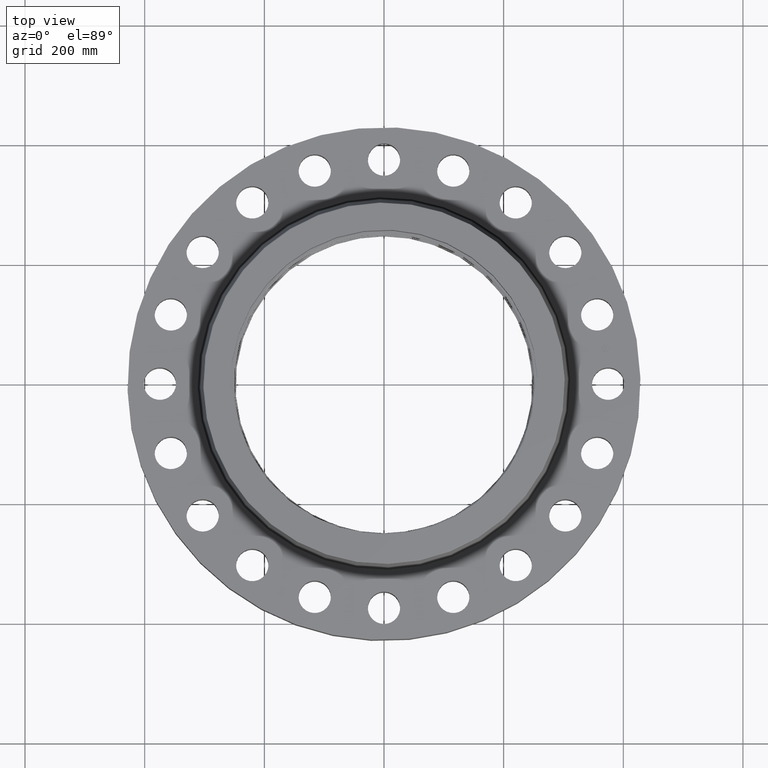
[diagram: clean part render]
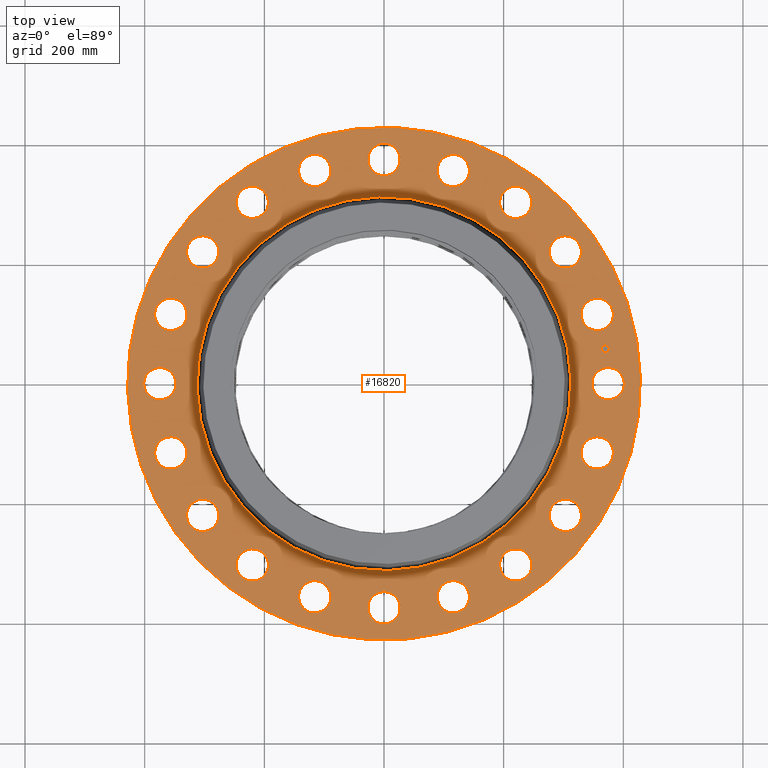
[diagram: same view with one face highlighted and labeled with its STEP entity id]
A machine part, top view. The second image highlights one B-rep face of the part: STEP entity #16820.
In plain terms, the highlighted planar face has unit normal (0, 0, -1).
Its self-contained STEP definition (entity closure, byte-faithful):
#416=AXIS2_PLACEMENT_3D('Circle Axis2P3D',#414,#415,$) ;
#433=AXIS2_PLACEMENT_3D('Circle Axis2P3D',#431,#432,$) ;
#466=AXIS2_PLACEMENT_3D('Circle Axis2P3D',#464,#465,$) ;
#490=AXIS2_PLACEMENT_3D('Circle Axis2P3D',#488,#489,$) ;
#507=AXIS2_PLACEMENT_3D('Circle Axis2P3D',#505,#506,$) ;
#542=AXIS2_PLACEMENT_3D('Circle Axis2P3D',#540,#541,$) ;
#1067=AXIS2_PLACEMENT_3D('Circle Axis2P3D',#1065,#1066,$) ;
#1079=AXIS2_PLACEMENT_3D('Circle Axis2P3D',#1077,#1078,$) ;
#1110=AXIS2_PLACEMENT_3D('Circle Axis2P3D',#1108,#1109,$) ;
#1122=AXIS2_PLACEMENT_3D('Circle Axis2P3D',#1120,#1121,$) ;
#1153=AXIS2_PLACEMENT_3D('Circle Axis2P3D',#1151,#1152,$) ;
#1165=AXIS2_PLACEMENT_3D('Circle Axis2P3D',#1163,#1164,$) ;
#1196=AXIS2_PLACEMENT_3D('Circle Axis2P3D',#1194,#1195,$) ;
#1208=AXIS2_PLACEMENT_3D('Circle Axis2P3D',#1206,#1207,$) ;
#1239=AXIS2_PLACEMENT_3D('Circle Axis2P3D',#1237,#1238,$) ;
#1251=AXIS2_PLACEMENT_3D('Circle Axis2P3D',#1249,#1250,$) ;
#1282=AXIS2_PLACEMENT_3D('Circle Axis2P3D',#1280,#1281,$) ;
#1294=AXIS2_PLACEMENT_3D('Circle Axis2P3D',#1292,#1293,$) ;
#1325=AXIS2_PLACEMENT_3D('Circle Axis2P3D',#1323,#1324,$) ;
#1337=AXIS2_PLACEMENT_3D('Circle Axis2P3D',#1335,#1336,$) ;
#1368=AXIS2_PLACEMENT_3D('Circle Axis2P3D',#1366,#1367,$) ;
#1380=AXIS2_PLACEMENT_3D('Circle Axis2P3D',#1378,#1379,$) ;
#1411=AXIS2_PLACEMENT_3D('Circle Axis2P3D',#1409,#1410,$) ;
#1423=AXIS2_PLACEMENT_3D('Circle Axis2P3D',#1421,#1422,$) ;
#1454=AXIS2_PLACEMENT_3D('Circle Axis2P3D',#1452,#1453,$) ;
#1466=AXIS2_PLACEMENT_3D('Circle Axis2P3D',#1464,#1465,$) ;
#1497=AXIS2_PLACEMENT_3D('Circle Axis2P3D',#1495,#1496,$) ;
#1509=AXIS2_PLACEMENT_3D('Circle Axis2P3D',#1507,#1508,$) ;
#1540=AXIS2_PLACEMENT_3D('Circle Axis2P3D',#1538,#1539,$) ;
#1552=AXIS2_PLACEMENT_3D('Circle Axis2P3D',#1550,#1551,$) ;
#1583=AXIS2_PLACEMENT_3D('Circle Axis2P3D',#1581,#1582,$) ;
#1595=AXIS2_PLACEMENT_3D('Circle Axis2P3D',#1593,#1594,$) ;
#1626=AXIS2_PLACEMENT_3D('Circle Axis2P3D',#1624,#1625,$) ;
#1638=AXIS2_PLACEMENT_3D('Circle Axis2P3D',#1636,#1637,$) ;
#1669=AXIS2_PLACEMENT_3D('Circle Axis2P3D',#1667,#1668,$) ;
#1681=AXIS2_PLACEMENT_3D('Circle Axis2P3D',#1679,#1680,$) ;
#1712=AXIS2_PLACEMENT_3D('Circle Axis2P3D',#1710,#1711,$) ;
#1724=AXIS2_PLACEMENT_3D('Circle Axis2P3D',#1722,#1723,$) ;
#1755=AXIS2_PLACEMENT_3D('Circle Axis2P3D',#1753,#1754,$) ;
#1767=AXIS2_PLACEMENT_3D('Circle Axis2P3D',#1765,#1766,$) ;
#1798=AXIS2_PLACEMENT_3D('Circle Axis2P3D',#1796,#1797,$) ;
#1810=AXIS2_PLACEMENT_3D('Circle Axis2P3D',#1808,#1809,$) ;
#1841=AXIS2_PLACEMENT_3D('Circle Axis2P3D',#1839,#1840,$) ;
#1853=AXIS2_PLACEMENT_3D('Circle Axis2P3D',#1851,#1852,$) ;
#16712=AXIS2_PLACEMENT_3D('Plane Axis2P3D',#16709,#16710,#16711) ;
#16804=AXIS2_PLACEMENT_3D('Circle Axis2P3D',#16802,#16803,$) ;
#16813=AXIS2_PLACEMENT_3D('Circle Axis2P3D',#16811,#16812,$) ;
#397=CARTESIAN_POINT('Vertex',(13.8153745716,0.510588198616,4.25000000002)) ;
#411=CARTESIAN_POINT('Vertex',(15.6846254285,-0.510588198616,4.25000000002)) ;
#414=CARTESIAN_POINT('Axis2P3D Location',(14.7500000001,0.,4.25000000002)) ;
#431=CARTESIAN_POINT('Axis2P3D Location',(14.7500000001,0.,4.25000000002)) ;
#461=CARTESIAN_POINT('Vertex',(-8.09030596398,-14.809205732,4.25000000002)) ;
#464=CARTESIAN_POINT('Axis2P3D Location',(0.,0.,4.25000000002)) ;
#468=CARTESIAN_POINT('Vertex',(8.09030596398,14.809205732,4.25000000002)) ;
#488=CARTESIAN_POINT('Axis2P3D Location',(0.,0.,4.25000000002)) ;
#505=CARTESIAN_POINT('Axis2P3D Location',(0.,0.,4.25000000002)) ;
#509=CARTESIAN_POINT('Vertex',(5.89709999548,10.7945691354,4.25000000002)) ;
#511=CARTESIAN_POINT('Vertex',(-5.89709999548,-10.7945691354,4.25000000002)) ;
#540=CARTESIAN_POINT('Axis2P3D Location',(0.,0.,4.25000000002)) ;
#1055=CARTESIAN_POINT('Vertex',(-13.2969824419,3.78358729286,4.25000000002)) ;
#1062=CARTESIAN_POINT('Vertex',(-14.7591847889,5.33241404124,4.25000000002)) ;
#1065=CARTESIAN_POINT('Axis2P3D Location',(-14.0280836154,4.55800066705,4.25000000002)) ;
#1077=CARTESIAN_POINT('Axis2P3D Location',(-14.0280836154,4.55800066705,4.25000000002)) ;
#1098=CARTESIAN_POINT('Vertex',(11.4769890253,-7.7073988983,4.25000000002)) ;
#1105=CARTESIAN_POINT('Vertex',(12.3890123089,-9.6322660444,4.25000000002)) ;
#1108=CARTESIAN_POINT('Axis2P3D Location',(11.9330006671,-8.66983247135,4.25000000002)) ;
#1120=CARTESIAN_POINT('Axis2P3D Location',(11.9330006671,-8.66983247135,4.25000000002)) ;
#1141=CARTESIAN_POINT('Vertex',(-11.4769890253,7.7073988983,4.25000000002)) ;
#1148=CARTESIAN_POINT('Vertex',(-12.3890123089,9.6322660444,4.25000000002)) ;
#1151=CARTESIAN_POINT('Axis2P3D Location',(-11.9330006671,8.66983247135,4.25000000002)) ;
#1163=CARTESIAN_POINT('Axis2P3D Location',(-11.9330006671,8.66983247135,4.25000000002)) ;
#1184=CARTESIAN_POINT('Vertex',(8.53354795791,-10.876756599,4.25000000002)) ;
#1191=CARTESIAN_POINT('Vertex',(8.80611698478,-12.9892447352,4.25000000002)) ;
#1194=CARTESIAN_POINT('Axis2P3D Location',(8.66983247135,-11.9330006671,4.25000000002)) ;
#1206=CARTESIAN_POINT('Axis2P3D Location',(8.66983247135,-11.9330006671,4.25000000002)) ;
#1227=CARTESIAN_POINT('Vertex',(-8.53354795791,10.876756599,4.25000000002)) ;
#1234=CARTESIAN_POINT('Vertex',(-8.80611698478,12.9892447352,4.25000000002)) ;
#1237=CARTESIAN_POINT('Axis2P3D Location',(-8.66983247135,11.9330006671,4.25000000002)) ;
#1249=CARTESIAN_POINT('Axis2P3D Location',(-8.66983247135,11.9330006671,4.25000000002)) ;
#1270=CARTESIAN_POINT('Vertex',(4.75478375973,-12.9814215809,4.25000000002)) ;
#1277=CARTESIAN_POINT('Vertex',(4.36121757437,-15.0747456499,4.25000000002)) ;
#1280=CARTESIAN_POINT('Axis2P3D Location',(4.55800066705,-14.0280836154,4.25000000002)) ;
#1292=CARTESIAN_POINT('Axis2P3D Location',(4.55800066705,-14.0280836154,4.25000000002)) ;
#1313=CARTESIAN_POINT('Vertex',(-4.75478375973,12.9814215809,4.25000000002)) ;
#1320=CARTESIAN_POINT('Vertex',(-4.36121757437,15.0747456499,4.25000000002)) ;
#1323=CARTESIAN_POINT('Axis2P3D Location',(-4.55800066705,14.0280836154,4.25000000002)) ;
#1335=CARTESIAN_POINT('Axis2P3D Location',(-4.55800066705,14.0280836154,4.25000000002)) ;
#1356=CARTESIAN_POINT('Vertex',(0.510588198616,-13.8153745716,4.25000000002)) ;
#1363=CARTESIAN_POINT('Vertex',(-0.510588198616,-15.6846254285,4.25000000002)) ;
#1366=CARTESIAN_POINT('Axis2P3D Location',(4.17833493703E-015,-14.7500000001,4.25000000002)) ;
#1378=CARTESIAN_POINT('Axis2P3D Location',(4.17833493703E-015,-14.7500000001,4.25000000002)) ;
#1399=CARTESIAN_POINT('Vertex',(-0.510588198616,13.8153745716,4.25000000002)) ;
#1406=CARTESIAN_POINT('Vertex',(0.510588198616,15.6846254285,4.25000000002)) ;
#1409=CARTESIAN_POINT('Axis2P3D Location',(-1.58101627338E-014,14.7500000001,4.25000000002)) ;
#1421=CARTESIAN_POINT('Axis2P3D Location',(-1.58101627338E-014,14.7500000001,4.25000000002)) ;
#1442=CARTESIAN_POINT('Vertex',(-3.78358729286,-13.2969824419,4.25000000002)) ;
#1449=CARTESIAN_POINT('Vertex',(-5.33241404124,-14.7591847889,4.25000000002)) ;
#1452=CARTESIAN_POINT('Axis2P3D Location',(-4.55800066705,-14.0280836154,4.25000000002)) ;
#1464=CARTESIAN_POINT('Axis2P3D Location',(-4.55800066705,-14.0280836154,4.25000000002)) ;
#1485=CARTESIAN_POINT('Vertex',(3.78358729286,13.2969824419,4.25000000002)) ;
#1492=CARTESIAN_POINT('Vertex',(5.33241404124,14.7591847889,4.25000000002)) ;
#1495=CARTESIAN_POINT('Axis2P3D Location',(4.55800066705,14.0280836154,4.25000000002)) ;
#1507=CARTESIAN_POINT('Axis2P3D Location',(4.55800066705,14.0280836154,4.25000000002)) ;
#1528=CARTESIAN_POINT('Vertex',(-7.7073988983,-11.4769890253,4.25000000002)) ;
#1535=CARTESIAN_POINT('Vertex',(-9.6322660444,-12.3890123089,4.25000000002)) ;
#1538=CARTESIAN_POINT('Axis2P3D Location',(-8.66983247135,-11.9330006671,4.25000000002)) ;
#1550=CARTESIAN_POINT('Axis2P3D Location',(-8.66983247135,-11.9330006671,4.25000000002)) ;
#1571=CARTESIAN_POINT('Vertex',(7.7073988983,11.4769890253,4.25000000002)) ;
#1578=CARTESIAN_POINT('Vertex',(9.6322660444,12.3890123089,4.25000000002)) ;
#1581=CARTESIAN_POINT('Axis2P3D Location',(8.66983247135,11.9330006671,4.25000000002)) ;
#1593=CARTESIAN_POINT('Axis2P3D Location',(8.66983247135,11.9330006671,4.25000000002)) ;
#1614=CARTESIAN_POINT('Vertex',(-10.876756599,-8.53354795791,4.25000000002)) ;
#1621=CARTESIAN_POINT('Vertex',(-12.9892447352,-8.80611698478,4.25000000002)) ;
#1624=CARTESIAN_POINT('Axis2P3D Location',(-11.9330006671,-8.66983247135,4.25000000002)) ;
#1636=CARTESIAN_POINT('Axis2P3D Location',(-11.9330006671,-8.66983247135,4.25000000002)) ;
#1657=CARTESIAN_POINT('Vertex',(10.876756599,8.53354795791,4.25000000002)) ;
#1664=CARTESIAN_POINT('Vertex',(12.9892447352,8.80611698478,4.25000000002)) ;
#1667=CARTESIAN_POINT('Axis2P3D Location',(11.9330006671,8.66983247135,4.25000000002)) ;
#1679=CARTESIAN_POINT('Axis2P3D Location',(11.9330006671,8.66983247135,4.25000000002)) ;
#1700=CARTESIAN_POINT('Vertex',(-12.9814215809,-4.75478375973,4.25000000002)) ;
#1707=CARTESIAN_POINT('Vertex',(-15.0747456499,-4.36121757437,4.25000000002)) ;
#1710=CARTESIAN_POINT('Axis2P3D Location',(-14.0280836154,-4.55800066705,4.25000000002)) ;
#1722=CARTESIAN_POINT('Axis2P3D Location',(-14.0280836154,-4.55800066705,4.25000000002)) ;
#1743=CARTESIAN_POINT('Vertex',(12.9814215809,4.75478375973,4.25000000002)) ;
#1750=CARTESIAN_POINT('Vertex',(15.0747456499,4.36121757437,4.25000000002)) ;
#1753=CARTESIAN_POINT('Axis2P3D Location',(14.0280836154,4.55800066705,4.25000000002)) ;
#1765=CARTESIAN_POINT('Axis2P3D Location',(14.0280836154,4.55800066705,4.25000000002)) ;
#1786=CARTESIAN_POINT('Vertex',(-13.8153745716,-0.510588198616,4.25000000002)) ;
#1793=CARTESIAN_POINT('Vertex',(-15.6846254285,0.510588198616,4.25000000002)) ;
#1796=CARTESIAN_POINT('Axis2P3D Location',(-14.7500000001,-8.35666987406E-015,4.25000000002)) ;
#1808=CARTESIAN_POINT('Axis2P3D Location',(-14.7500000001,-8.35666987406E-015,4.25000000002)) ;
#1829=CARTESIAN_POINT('Vertex',(13.2969824419,-3.78358729286,4.25000000002)) ;
#1836=CARTESIAN_POINT('Vertex',(14.7591847889,-5.33241404124,4.25000000002)) ;
#1839=CARTESIAN_POINT('Axis2P3D Location',(14.0280836154,-4.55800066705,4.25000000002)) ;
#1851=CARTESIAN_POINT('Axis2P3D Location',(14.0280836154,-4.55800066705,4.25000000002)) ;
#16709=CARTESIAN_POINT('Axis2P3D Location',(0.,16.8750000001,4.25000000002)) ;
#16802=CARTESIAN_POINT('Axis2P3D Location',(14.5684030238,2.30740835935,4.25000000002)) ;
#16806=CARTESIAN_POINT('Vertex',(14.5296854937,2.55186122365,4.25000000002)) ;
#16808=CARTESIAN_POINT('Vertex',(14.6071205539,2.06295549505,4.25000000002)) ;
#16811=CARTESIAN_POINT('Axis2P3D Location',(14.5684030238,2.30740835935,4.25000000002)) ;
#415=DIRECTION('Axis2P3D Direction',(0.,-0.,-0.0393700787402)) ;
#432=DIRECTION('Axis2P3D Direction',(0.,-0.,-0.0393700787402)) ;
#465=DIRECTION('Axis2P3D Direction',(0.,0.,-0.0393700787402)) ;
#489=DIRECTION('Axis2P3D Direction',(0.,0.,-0.0393700787402)) ;
#506=DIRECTION('Axis2P3D Direction',(0.,0.,-0.0393700787402)) ;
#541=DIRECTION('Axis2P3D Direction',(0.,0.,-0.0393700787402)) ;
#1066=DIRECTION('Axis2P3D Direction',(0.,0.,-0.0393700787402)) ;
#1078=DIRECTION('Axis2P3D Direction',(0.,0.,-0.0393700787402)) ;
#1109=DIRECTION('Axis2P3D Direction',(0.,-0.,-0.0393700787402)) ;
#1121=DIRECTION('Axis2P3D Direction',(0.,-0.,-0.0393700787402)) ;
#1152=DIRECTION('Axis2P3D Direction',(0.,0.,-0.0393700787402)) ;
#1164=DIRECTION('Axis2P3D Direction',(0.,0.,-0.0393700787402)) ;
#1195=DIRECTION('Axis2P3D Direction',(0.,-0.,-0.0393700787402)) ;
#1207=DIRECTION('Axis2P3D Direction',(0.,-0.,-0.0393700787402)) ;
#1238=DIRECTION('Axis2P3D Direction',(0.,0.,-0.0393700787402)) ;
#1250=DIRECTION('Axis2P3D Direction',(0.,0.,-0.0393700787402)) ;
#1281=DIRECTION('Axis2P3D Direction',(0.,-0.,-0.0393700787402)) ;
#1293=DIRECTION('Axis2P3D Direction',(0.,-0.,-0.0393700787402)) ;
#1324=DIRECTION('Axis2P3D Direction',(0.,0.,-0.0393700787402)) ;
#1336=DIRECTION('Axis2P3D Direction',(0.,0.,-0.0393700787402)) ;
#1367=DIRECTION('Axis2P3D Direction',(0.,-0.,-0.0393700787402)) ;
#1379=DIRECTION('Axis2P3D Direction',(0.,-0.,-0.0393700787402)) ;
#1410=DIRECTION('Axis2P3D Direction',(0.,0.,-0.0393700787402)) ;
#1422=DIRECTION('Axis2P3D Direction',(0.,0.,-0.0393700787402)) ;
#1453=DIRECTION('Axis2P3D Direction',(-0.,0.,-0.0393700787402)) ;
#1465=DIRECTION('Axis2P3D Direction',(-0.,0.,-0.0393700787402)) ;
#1496=DIRECTION('Axis2P3D Direction',(0.,0.,-0.0393700787402)) ;
#1508=DIRECTION('Axis2P3D Direction',(0.,0.,-0.0393700787402)) ;
#1539=DIRECTION('Axis2P3D Direction',(-0.,0.,-0.0393700787402)) ;
#1551=DIRECTION('Axis2P3D Direction',(-0.,0.,-0.0393700787402)) ;
#1582=DIRECTION('Axis2P3D Direction',(0.,0.,-0.0393700787402)) ;
#1594=DIRECTION('Axis2P3D Direction',(0.,0.,-0.0393700787402)) ;
#1625=DIRECTION('Axis2P3D Direction',(-0.,0.,-0.0393700787402)) ;
#1637=DIRECTION('Axis2P3D Direction',(-0.,0.,-0.0393700787402)) ;
#1668=DIRECTION('Axis2P3D Direction',(0.,0.,-0.0393700787402)) ;
#1680=DIRECTION('Axis2P3D Direction',(0.,0.,-0.0393700787402)) ;
#1711=DIRECTION('Axis2P3D Direction',(-0.,0.,-0.0393700787402)) ;
#1723=DIRECTION('Axis2P3D Direction',(-0.,0.,-0.0393700787402)) ;
#1754=DIRECTION('Axis2P3D Direction',(0.,0.,-0.0393700787402)) ;
#1766=DIRECTION('Axis2P3D Direction',(0.,0.,-0.0393700787402)) ;
#1797=DIRECTION('Axis2P3D Direction',(-0.,0.,-0.0393700787402)) ;
#1809=DIRECTION('Axis2P3D Direction',(-0.,0.,-0.0393700787402)) ;
#1840=DIRECTION('Axis2P3D Direction',(0.,-0.,-0.0393700787402)) ;
#1852=DIRECTION('Axis2P3D Direction',(0.,-0.,-0.0393700787402)) ;
#16710=DIRECTION('Axis2P3D Direction',(0.,0.,-0.0393700787402)) ;
#16711=DIRECTION('Axis2P3D XDirection',(0.0393700787402,0.,0.)) ;
#16803=DIRECTION('Axis2P3D Direction',(0.,0.,-0.0393700787402)) ;
#16812=DIRECTION('Axis2P3D Direction',(0.,0.,-0.0393700787402)) ;
#16715=ORIENTED_EDGE('',*,*,#492,.F.) ;
#16716=ORIENTED_EDGE('',*,*,#470,.F.) ;
#16719=ORIENTED_EDGE('',*,*,#418,.T.) ;
#16720=ORIENTED_EDGE('',*,*,#435,.T.) ;
#16723=ORIENTED_EDGE('',*,*,#544,.T.) ;
#16724=ORIENTED_EDGE('',*,*,#513,.T.) ;
#16727=ORIENTED_EDGE('',*,*,#1855,.T.) ;
#16728=ORIENTED_EDGE('',*,*,#1843,.T.) ;
#16731=ORIENTED_EDGE('',*,*,#1124,.T.) ;
#16732=ORIENTED_EDGE('',*,*,#1112,.T.) ;
#16735=ORIENTED_EDGE('',*,*,#1210,.T.) ;
#16736=ORIENTED_EDGE('',*,*,#1198,.T.) ;
#16739=ORIENTED_EDGE('',*,*,#1296,.T.) ;
#16740=ORIENTED_EDGE('',*,*,#1284,.T.) ;
#16743=ORIENTED_EDGE('',*,*,#1382,.T.) ;
#16744=ORIENTED_EDGE('',*,*,#1370,.T.) ;
#16747=ORIENTED_EDGE('',*,*,#1468,.T.) ;
#16748=ORIENTED_EDGE('',*,*,#1456,.T.) ;
#16751=ORIENTED_EDGE('',*,*,#1554,.T.) ;
#16752=ORIENTED_EDGE('',*,*,#1542,.T.) ;
#16755=ORIENTED_EDGE('',*,*,#1640,.T.) ;
#16756=ORIENTED_EDGE('',*,*,#1628,.T.) ;
#16759=ORIENTED_EDGE('',*,*,#1726,.T.) ;
#16760=ORIENTED_EDGE('',*,*,#1714,.T.) ;
#16763=ORIENTED_EDGE('',*,*,#1812,.T.) ;
#16764=ORIENTED_EDGE('',*,*,#1800,.T.) ;
#16767=ORIENTED_EDGE('',*,*,#1081,.T.) ;
#16768=ORIENTED_EDGE('',*,*,#1069,.T.) ;
#16771=ORIENTED_EDGE('',*,*,#1167,.T.) ;
#16772=ORIENTED_EDGE('',*,*,#1155,.T.) ;
#16775=ORIENTED_EDGE('',*,*,#1253,.T.) ;
#16776=ORIENTED_EDGE('',*,*,#1241,.T.) ;
#16779=ORIENTED_EDGE('',*,*,#1339,.T.) ;
#16780=ORIENTED_EDGE('',*,*,#1327,.T.) ;
#16783=ORIENTED_EDGE('',*,*,#1425,.T.) ;
#16784=ORIENTED_EDGE('',*,*,#1413,.T.) ;
#16787=ORIENTED_EDGE('',*,*,#1511,.T.) ;
#16788=ORIENTED_EDGE('',*,*,#1499,.T.) ;
#16791=ORIENTED_EDGE('',*,*,#1597,.T.) ;
#16792=ORIENTED_EDGE('',*,*,#1585,.T.) ;
#16795=ORIENTED_EDGE('',*,*,#1683,.T.) ;
#16796=ORIENTED_EDGE('',*,*,#1671,.T.) ;
#16799=ORIENTED_EDGE('',*,*,#1769,.T.) ;
#16800=ORIENTED_EDGE('',*,*,#1757,.T.) ;
#16817=ORIENTED_EDGE('',*,*,#16810,.T.) ;
#16818=ORIENTED_EDGE('',*,*,#16815,.T.) ;
#16721=FACE_BOUND('',#16718,.T.) ;
#16725=FACE_BOUND('',#16722,.T.) ;
#16729=FACE_BOUND('',#16726,.T.) ;
#16733=FACE_BOUND('',#16730,.T.) ;
#16737=FACE_BOUND('',#16734,.T.) ;
#16741=FACE_BOUND('',#16738,.T.) ;
#16745=FACE_BOUND('',#16742,.T.) ;
#16749=FACE_BOUND('',#16746,.T.) ;
#16753=FACE_BOUND('',#16750,.T.) ;
#16757=FACE_BOUND('',#16754,.T.) ;
#16761=FACE_BOUND('',#16758,.T.) ;
#16765=FACE_BOUND('',#16762,.T.) ;
#16769=FACE_BOUND('',#16766,.T.) ;
#16773=FACE_BOUND('',#16770,.T.) ;
#16777=FACE_BOUND('',#16774,.T.) ;
#16781=FACE_BOUND('',#16778,.T.) ;
#16785=FACE_BOUND('',#16782,.T.) ;
#16789=FACE_BOUND('',#16786,.T.) ;
#16793=FACE_BOUND('',#16790,.T.) ;
#16797=FACE_BOUND('',#16794,.T.) ;
#16801=FACE_BOUND('',#16798,.T.) ;
#16819=FACE_BOUND('',#16816,.T.) ;
#16820=ADVANCED_FACE('PartBody',(#16717,#16721,#16725,#16729,#16733,#16737,#16741,#16745,#16749,#16753,#16757,#16761,#16765,#16769,#16773,#16777,#16781,#16785,#16789,#16793,#16797,#16801,#16819),#16713,.F.) ;
#417=CIRCLE('generated circle',#416,1.065) ;
#434=CIRCLE('generated circle',#433,1.065) ;
#467=CIRCLE('generated circle',#466,16.8750000001) ;
#491=CIRCLE('generated circle',#490,16.8750000001) ;
#508=CIRCLE('generated circle',#507,12.3003459779) ;
#543=CIRCLE('generated circle',#542,12.3003459779) ;
#1068=CIRCLE('generated circle',#1067,1.065) ;
#1080=CIRCLE('generated circle',#1079,1.065) ;
#1111=CIRCLE('generated circle',#1110,1.065) ;
#1123=CIRCLE('generated circle',#1122,1.065) ;
#1154=CIRCLE('generated circle',#1153,1.065) ;
#1166=CIRCLE('generated circle',#1165,1.065) ;
#1197=CIRCLE('generated circle',#1196,1.065) ;
#1209=CIRCLE('generated circle',#1208,1.065) ;
#1240=CIRCLE('generated circle',#1239,1.065) ;
#1252=CIRCLE('generated circle',#1251,1.065) ;
#1283=CIRCLE('generated circle',#1282,1.065) ;
#1295=CIRCLE('generated circle',#1294,1.065) ;
#1326=CIRCLE('generated circle',#1325,1.065) ;
#1338=CIRCLE('generated circle',#1337,1.065) ;
#1369=CIRCLE('generated circle',#1368,1.065) ;
#1381=CIRCLE('generated circle',#1380,1.065) ;
#1412=CIRCLE('generated circle',#1411,1.065) ;
#1424=CIRCLE('generated circle',#1423,1.065) ;
#1455=CIRCLE('generated circle',#1454,1.065) ;
#1467=CIRCLE('generated circle',#1466,1.065) ;
#1498=CIRCLE('generated circle',#1497,1.065) ;
#1510=CIRCLE('generated circle',#1509,1.065) ;
#1541=CIRCLE('generated circle',#1540,1.065) ;
#1553=CIRCLE('generated circle',#1552,1.065) ;
#1584=CIRCLE('generated circle',#1583,1.065) ;
#1596=CIRCLE('generated circle',#1595,1.065) ;
#1627=CIRCLE('generated circle',#1626,1.065) ;
#1639=CIRCLE('generated circle',#1638,1.065) ;
#1670=CIRCLE('generated circle',#1669,1.065) ;
#1682=CIRCLE('generated circle',#1681,1.065) ;
#1713=CIRCLE('generated circle',#1712,1.065) ;
#1725=CIRCLE('generated circle',#1724,1.065) ;
#1756=CIRCLE('generated circle',#1755,1.065) ;
#1768=CIRCLE('generated circle',#1767,1.065) ;
#1799=CIRCLE('generated circle',#1798,1.065) ;
#1811=CIRCLE('generated circle',#1810,1.065) ;
#1842=CIRCLE('generated circle',#1841,1.065) ;
#1854=CIRCLE('generated circle',#1853,1.065) ;
#16805=CIRCLE('generated circle',#16804,0.247500000001) ;
#16814=CIRCLE('generated circle',#16813,0.247500000001) ;
#418=EDGE_CURVE('',#398,#412,#417,.T.) ;
#435=EDGE_CURVE('',#412,#398,#434,.T.) ;
#470=EDGE_CURVE('',#462,#469,#467,.T.) ;
#492=EDGE_CURVE('',#469,#462,#491,.T.) ;
#513=EDGE_CURVE('',#510,#512,#508,.T.) ;
#544=EDGE_CURVE('',#512,#510,#543,.T.) ;
#1069=EDGE_CURVE('',#1056,#1063,#1068,.T.) ;
#1081=EDGE_CURVE('',#1063,#1056,#1080,.T.) ;
#1112=EDGE_CURVE('',#1099,#1106,#1111,.T.) ;
#1124=EDGE_CURVE('',#1106,#1099,#1123,.T.) ;
#1155=EDGE_CURVE('',#1142,#1149,#1154,.T.) ;
#1167=EDGE_CURVE('',#1149,#1142,#1166,.T.) ;
#1198=EDGE_CURVE('',#1185,#1192,#1197,.T.) ;
#1210=EDGE_CURVE('',#1192,#1185,#1209,.T.) ;
#1241=EDGE_CURVE('',#1228,#1235,#1240,.T.) ;
#1253=EDGE_CURVE('',#1235,#1228,#1252,.T.) ;
#1284=EDGE_CURVE('',#1271,#1278,#1283,.T.) ;
#1296=EDGE_CURVE('',#1278,#1271,#1295,.T.) ;
#1327=EDGE_CURVE('',#1314,#1321,#1326,.T.) ;
#1339=EDGE_CURVE('',#1321,#1314,#1338,.T.) ;
#1370=EDGE_CURVE('',#1357,#1364,#1369,.T.) ;
#1382=EDGE_CURVE('',#1364,#1357,#1381,.T.) ;
#1413=EDGE_CURVE('',#1400,#1407,#1412,.T.) ;
#1425=EDGE_CURVE('',#1407,#1400,#1424,.T.) ;
#1456=EDGE_CURVE('',#1443,#1450,#1455,.T.) ;
#1468=EDGE_CURVE('',#1450,#1443,#1467,.T.) ;
#1499=EDGE_CURVE('',#1486,#1493,#1498,.T.) ;
#1511=EDGE_CURVE('',#1493,#1486,#1510,.T.) ;
#1542=EDGE_CURVE('',#1529,#1536,#1541,.T.) ;
#1554=EDGE_CURVE('',#1536,#1529,#1553,.T.) ;
#1585=EDGE_CURVE('',#1572,#1579,#1584,.T.) ;
#1597=EDGE_CURVE('',#1579,#1572,#1596,.T.) ;
#1628=EDGE_CURVE('',#1615,#1622,#1627,.T.) ;
#1640=EDGE_CURVE('',#1622,#1615,#1639,.T.) ;
#1671=EDGE_CURVE('',#1658,#1665,#1670,.T.) ;
#1683=EDGE_CURVE('',#1665,#1658,#1682,.T.) ;
#1714=EDGE_CURVE('',#1701,#1708,#1713,.T.) ;
#1726=EDGE_CURVE('',#1708,#1701,#1725,.T.) ;
#1757=EDGE_CURVE('',#1744,#1751,#1756,.T.) ;
#1769=EDGE_CURVE('',#1751,#1744,#1768,.T.) ;
#1800=EDGE_CURVE('',#1787,#1794,#1799,.T.) ;
#1812=EDGE_CURVE('',#1794,#1787,#1811,.T.) ;
#1843=EDGE_CURVE('',#1830,#1837,#1842,.T.) ;
#1855=EDGE_CURVE('',#1837,#1830,#1854,.T.) ;
#16810=EDGE_CURVE('',#16807,#16809,#16805,.T.) ;
#16815=EDGE_CURVE('',#16809,#16807,#16814,.T.) ;
#16714=EDGE_LOOP('',(#16715,#16716)) ;
#16718=EDGE_LOOP('',(#16719,#16720)) ;
#16722=EDGE_LOOP('',(#16723,#16724)) ;
#16726=EDGE_LOOP('',(#16727,#16728)) ;
#16730=EDGE_LOOP('',(#16731,#16732)) ;
#16734=EDGE_LOOP('',(#16735,#16736)) ;
#16738=EDGE_LOOP('',(#16739,#16740)) ;
#16742=EDGE_LOOP('',(#16743,#16744)) ;
#16746=EDGE_LOOP('',(#16747,#16748)) ;
#16750=EDGE_LOOP('',(#16751,#16752)) ;
#16754=EDGE_LOOP('',(#16755,#16756)) ;
#16758=EDGE_LOOP('',(#16759,#16760)) ;
#16762=EDGE_LOOP('',(#16763,#16764)) ;
#16766=EDGE_LOOP('',(#16767,#16768)) ;
#16770=EDGE_LOOP('',(#16771,#16772)) ;
#16774=EDGE_LOOP('',(#16775,#16776)) ;
#16778=EDGE_LOOP('',(#16779,#16780)) ;
#16782=EDGE_LOOP('',(#16783,#16784)) ;
#16786=EDGE_LOOP('',(#16787,#16788)) ;
#16790=EDGE_LOOP('',(#16791,#16792)) ;
#16794=EDGE_LOOP('',(#16795,#16796)) ;
#16798=EDGE_LOOP('',(#16799,#16800)) ;
#16816=EDGE_LOOP('',(#16817,#16818)) ;
#16717=FACE_OUTER_BOUND('',#16714,.T.) ;
#16713=PLANE('',#16712) ;
#398=VERTEX_POINT('',#397) ;
#412=VERTEX_POINT('',#411) ;
#462=VERTEX_POINT('',#461) ;
#469=VERTEX_POINT('',#468) ;
#510=VERTEX_POINT('',#509) ;
#512=VERTEX_POINT('',#511) ;
#1056=VERTEX_POINT('',#1055) ;
#1063=VERTEX_POINT('',#1062) ;
#1099=VERTEX_POINT('',#1098) ;
#1106=VERTEX_POINT('',#1105) ;
#1142=VERTEX_POINT('',#1141) ;
#1149=VERTEX_POINT('',#1148) ;
#1185=VERTEX_POINT('',#1184) ;
#1192=VERTEX_POINT('',#1191) ;
#1228=VERTEX_POINT('',#1227) ;
#1235=VERTEX_POINT('',#1234) ;
#1271=VERTEX_POINT('',#1270) ;
#1278=VERTEX_POINT('',#1277) ;
#1314=VERTEX_POINT('',#1313) ;
#1321=VERTEX_POINT('',#1320) ;
#1357=VERTEX_POINT('',#1356) ;
#1364=VERTEX_POINT('',#1363) ;
#1400=VERTEX_POINT('',#1399) ;
#1407=VERTEX_POINT('',#1406) ;
#1443=VERTEX_POINT('',#1442) ;
#1450=VERTEX_POINT('',#1449) ;
#1486=VERTEX_POINT('',#1485) ;
#1493=VERTEX_POINT('',#1492) ;
#1529=VERTEX_POINT('',#1528) ;
#1536=VERTEX_POINT('',#1535) ;
#1572=VERTEX_POINT('',#1571) ;
#1579=VERTEX_POINT('',#1578) ;
#1615=VERTEX_POINT('',#1614) ;
#1622=VERTEX_POINT('',#1621) ;
#1658=VERTEX_POINT('',#1657) ;
#1665=VERTEX_POINT('',#1664) ;
#1701=VERTEX_POINT('',#1700) ;
#1708=VERTEX_POINT('',#1707) ;
#1744=VERTEX_POINT('',#1743) ;
#1751=VERTEX_POINT('',#1750) ;
#1787=VERTEX_POINT('',#1786) ;
#1794=VERTEX_POINT('',#1793) ;
#1830=VERTEX_POINT('',#1829) ;
#1837=VERTEX_POINT('',#1836) ;
#16807=VERTEX_POINT('',#16806) ;
#16809=VERTEX_POINT('',#16808) ;